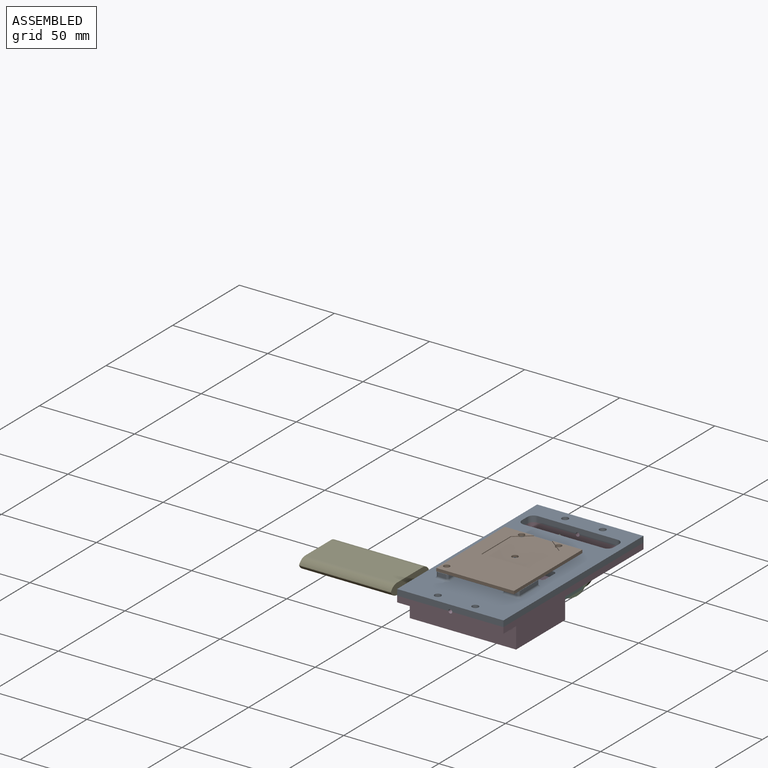
[diagram: assembled view]
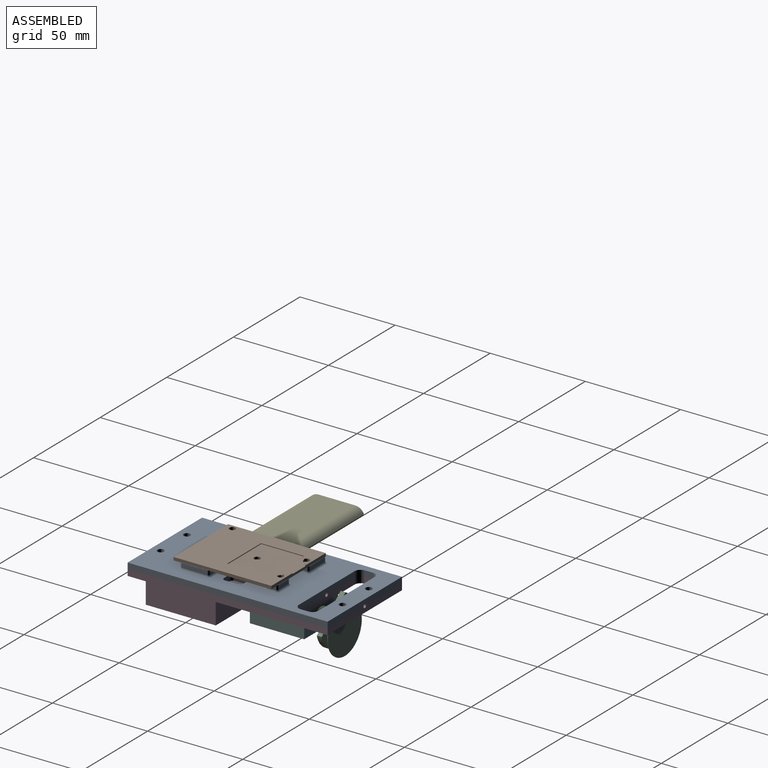
[diagram: assembled view, second angle]
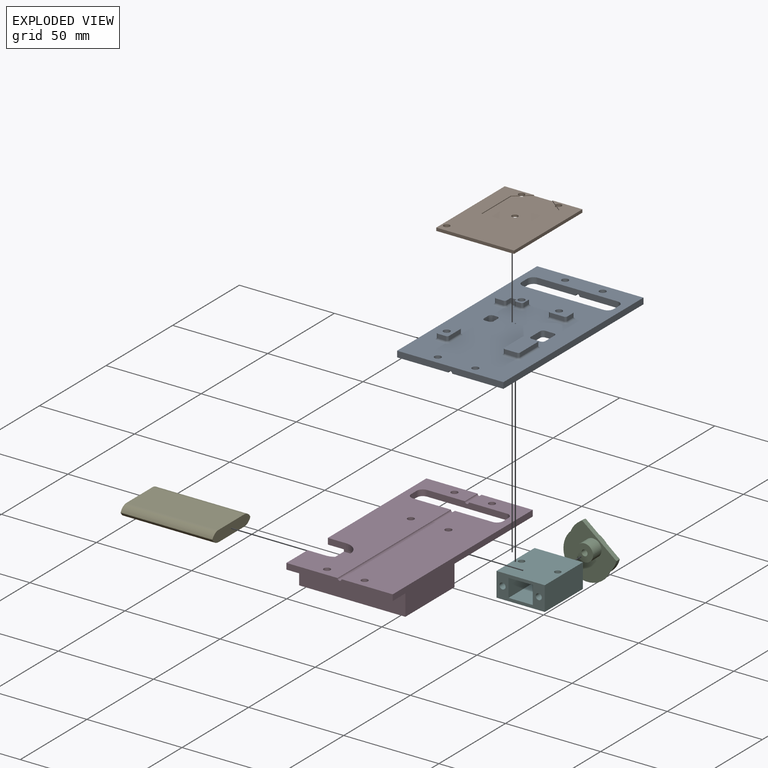
[diagram: exploded view]
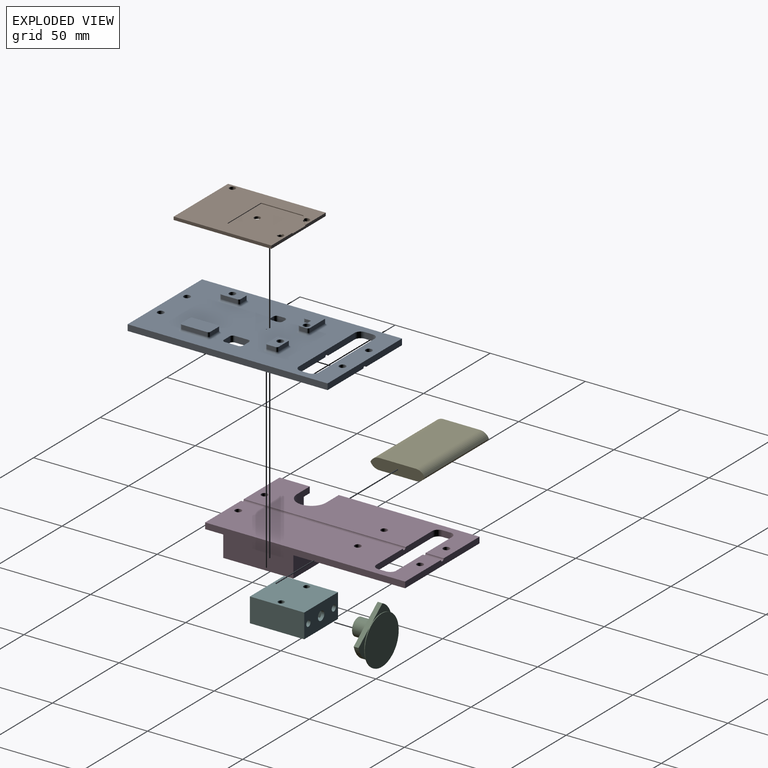
[diagram: exploded view, second angle]
ASSEMBLY  parts=6 mates=6
PART A: 119 faces, bbox 55.9x105.1x6.4 mm
  f0: plane 105.11x55.88mm, normal (0,0,1), area 4739.6mm2, adj f3,f4,f5,f6,f7,f8,f9,f12
  f1: plane 105.11x26.92mm, normal (0,0,-1), area 2524.7mm2, adj f4,f5,f6,f8,f9,f10,f12,f14
  f2: plane 105.11x26.92mm, normal (0,0,-1), area 2488.8mm2, adj f3,f4,f6,f7,f8,f11,f13,f16
  f3: plane 4.14x3.18mm, normal (-1,0,0), area 13.1mm2, adj f0,f2,f60,f63
  f4: plane 41.91x3.18mm, normal (0,1,0), area 131.4mm2, adj f0,f1,f2,f19,f60,f61
  f5: plane 4.14x3.18mm, normal (1,0,0), area 13.1mm2, adj f0,f1,f61,f62
  f6: plane 55.88x3.18mm, normal (0,-1,0), area 175.8mm2, adj f0,f1,f2,f7,f9,f19
  f7: plane 105.11x3.18mm, normal (1,0,0), area 333.7mm2, adj f0,f2,f6,f8
  f8: plane 55.88x3.18mm, normal (0,1,0), area 175.8mm2, adj f0,f1,f2,f7,f9,f18
  f9: plane 105.11x3.18mm, normal (-1,0,0), area 333.7mm2, adj f0,f1,f6,f8
  f10: cylinder r=1.71mm len=6.35mm, axis (0,0,-1), area 68.4mm2, adj f1,f33
  f11: cylinder r=1.71mm len=6.35mm, axis (0,0,-1), area 68.4mm2, adj f2,f38
  f12: cylinder r=1.71mm len=3.43mm, axis (0,0,-1), area 34.2mm2, adj f0,f1
  f13: cylinder r=1.71mm len=3.43mm, axis (0,0,-1), area 34.2mm2, adj f0,f2
  f14: cylinder r=1.71mm len=6.35mm, axis (0,0,-1), area 68.4mm2, adj f1,f24
  f15: cylinder r=1.71mm len=3.43mm, axis (0,0,-1), area 34.2mm2, adj f0,f1
  f16: cylinder r=1.71mm len=3.43mm, axis (0,0,-1), area 34.2mm2, adj f0,f2
  f17: plane 41.91x3.18mm, normal (0,-1,0), area 131.4mm2, adj f0,f1,f2,f18,f62,f63
  f18: cylinder r=1.02mm len=9.53mm, axis (0,-1,0), area 30.4mm2, adj f1,f2,f8,f17
  f19: cylinder r=1.02mm len=85.09mm, axis (0,-1,0), area 271.6mm2, adj f1,f2,f4,f6
  f20: plane 4.19x2.16mm, normal (0,1,0), area 9mm2, adj f24,f97,f102,f103
  f21: plane 8.38x2.16mm, normal (-1,0,0), area 18.1mm2, adj f24,f100,f103,f106
  f22: plane 4.19x2.16mm, normal (0,-1,0), area 9mm2, adj f24,f95,f100,f101
  f23: plane 8.38x2.16mm, normal (1,0,0), area 18.1mm2, adj f24,f95,f96,f97
  f24: plane 10.41x6.22mm, normal (0,0,1), area 54.7mm2, adj f14,f20,f21,f22,f23,f95,f97,f100
  f25: plane 3.81x2.16mm, normal (0,-1,0), area 8.2mm2, adj f33,f77,f79,f80
  f26: plane 3.1x2.16mm, normal (1,0,0), area 6.7mm2, adj f27,f33,f80,f82
  f27: plane 3.18x2.92mm, normal (0,-1,0), area 8.8mm2, adj f0,f26,f28,f33,f64,f82
  f28: plane 2.16x0.76mm, normal (-1,0,0), area 1.6mm2, adj f27,f33,f64,f65
  f29: plane 2.41x2.16mm, normal (0,-1,0), area 5.2mm2, adj f33,f65,f67,f68
  f30: plane 3.56x2.16mm, normal (1,0,0), area 7.7mm2, adj f33,f68,f70,f71
  f31: plane 11.18x2.16mm, normal (0,1,0), area 24.1mm2, adj f33,f71,f73,f74
  f32: plane 5.89x2.16mm, normal (-1,0,0), area 12.7mm2, adj f33,f74,f76,f77
  f33: plane 13.21x7.92mm, normal (0,0,1), area 71.7mm2, adj f10,f25,f26,f27,f28,f29,f30,f31
  f34: plane 7.34x2.16mm, normal (0,-1,0), area 15.8mm2, adj f38,f84,f90,f91
  f35: plane 4.32x2.16mm, normal (1,0,0), area 9.3mm2, adj f38,f83,f84,f85
  f36: plane 7.34x2.16mm, normal (0,1,0), area 15.8mm2, adj f38,f83,f88,f89
  f37: plane 4.32x2.16mm, normal (-1,0,0), area 9.3mm2, adj f38,f89,f90,f94
  f38: plane 9.37x6.35mm, normal (0,0,1), area 49.4mm2, adj f11,f34,f35,f36,f37,f83,f84,f89
  f39: plane 6.32x2.16mm, normal (0,-1,0), area 13.7mm2, adj f43,f108,f114,f115
  f40: plane 13.21x2.16mm, normal (1,0,0), area 28.5mm2, adj f43,f107,f108,f109
  f41: plane 6.32x2.16mm, normal (0,1,0), area 13.7mm2, adj f43,f107,f112,f113
  f42: plane 13.21x2.16mm, normal (-1,0,0), area 28.5mm2, adj f43,f113,f114,f118
  f43: plane 15.24x8.36mm, normal (0,0,1), area 126.5mm2, adj f39,f40,f41,f42,f107,f108,f113,f114
  f44: plane 4.42x3.18mm, normal (0,-1,0), area 14mm2, adj f0,f2,f52,f55
  f45: plane 6.96x3.18mm, normal (-1,0,0), area 22.1mm2, adj f0,f2,f52,f53
  f46: plane 4.42x3.18mm, normal (0,1,0), area 14mm2, adj f0,f2,f53,f54
  f47: plane 6.96x3.18mm, normal (1,0,0), area 22.1mm2, adj f0,f2,f54,f55
  f48: plane 3.18x1.88mm, normal (0,-1,0), area 6mm2, adj f0,f1,f56,f59
  f49: plane 3.18x3.15mm, normal (-1,0,0), area 10mm2, adj f0,f1,f56,f57
  f50: plane 3.18x1.88mm, normal (0,1,0), area 6mm2, adj f0,f1,f57,f58
  f51: plane 3.18x3.15mm, normal (1,0,0), area 10mm2, adj f0,f1,f58,f59
  f52: cylinder r=1.6mm len=3.18mm, axis (0,0,1), area 8mm2, adj f0,f2,f44,f45
  f53: cylinder r=1.6mm len=3.18mm, axis (0,0,-1), area 8mm2, adj f0,f2,f45,f46
  f54: cylinder r=1.6mm len=3.18mm, axis (0,0,1), area 8mm2, adj f0,f2,f46,f47
  f55: cylinder r=1.6mm len=3.18mm, axis (0,0,-1), area 8mm2, adj f0,f2,f44,f47
  f56: cylinder r=1.6mm len=3.18mm, axis (0,0,1), area 8mm2, adj f0,f1,f48,f49
  f57: cylinder r=1.6mm len=3.18mm, axis (0,0,-1), area 8mm2, adj f0,f1,f49,f50
  f58: cylinder r=1.6mm len=3.18mm, axis (0,0,1), area 8mm2, adj f0,f1,f50,f51
  f59: cylinder r=1.6mm len=3.18mm, axis (0,0,-1), area 8mm2, adj f0,f1,f48,f51
  f60: cylinder r=3.17mm len=3.18mm, axis (0,0,1), area 15.8mm2, adj f0,f2,f3,f4
  f61: cylinder r=3.17mm len=3.18mm, axis (0,0,-1), area 15.8mm2, adj f0,f1,f4,f5
  f62: cylinder r=3.17mm len=3.18mm, axis (0,0,1), area 15.8mm2, adj f0,f1,f5,f17
  f63: cylinder r=3.17mm len=3.18mm, axis (0,0,-1), area 15.8mm2, adj f0,f2,f3,f17
  f64: cylinder r=1.02mm len=1.02mm, axis (0,-1,0), area 1.2mm2, adj f0,f27,f28,f66
  f65: cylinder r=1.02mm len=2.16mm, axis (0,0,-1), area 3.4mm2, adj f28,f29,f33,f66
  f66: torus R=2.03mm, axis (0,0,1), area 3.5mm2, adj f0,f64,f65,f67
  f67: cylinder r=1.02mm len=2.41mm, axis (1,0,0), area 3.9mm2, adj f0,f29,f66,f69
  f68: cylinder r=1.02mm len=2.16mm, axis (0,0,-1), area 3.4mm2, adj f29,f30,f33,f69
  f69: torus R=2.03mm, axis (0,0,1), area 3.5mm2, adj f0,f67,f68,f70
  f70: cylinder r=1.02mm len=3.56mm, axis (0,1,0), area 5.7mm2, adj f0,f30,f69,f72
  f71: cylinder r=1.02mm len=2.16mm, axis (0,0,-1), area 3.4mm2, adj f30,f31,f33,f72
  f72: torus R=2.03mm, axis (0,0,1), area 3.5mm2, adj f0,f70,f71,f73
  f73: cylinder r=1.02mm len=11.18mm, axis (-1,0,0), area 17.8mm2, adj f0,f31,f72,f75
  f74: cylinder r=1.02mm len=2.16mm, axis (0,0,1), area 3.4mm2, adj f31,f32,f33,f75
  f75: torus R=2.03mm, axis (0,0,1), area 3.5mm2, adj f0,f73,f74,f76
  f76: cylinder r=1.02mm len=5.89mm, axis (0,-1,0), area 9.4mm2, adj f0,f32,f75,f78
  f77: cylinder r=1.02mm len=2.16mm, axis (0,0,1), area 3.4mm2, adj f25,f32,f33,f78
  f78: torus R=2.03mm, axis (0,0,1), area 3.5mm2, adj f0,f76,f77,f79
  f79: cylinder r=1.02mm len=3.81mm, axis (1,0,0), area 6.1mm2, adj f0,f25,f78,f81
  f80: cylinder r=1.02mm len=2.16mm, axis (0,0,-1), area 3.4mm2, adj f25,f26,f33,f81
  f81: torus R=2.03mm, axis (0,0,1), area 3.5mm2, adj f0,f79,f80,f82
  f82: cylinder r=1.02mm len=3.1mm, axis (0,1,0), area 4.9mm2, adj f0,f26,f27,f81
  f83: cylinder r=1.02mm len=2.16mm, axis (0,0,1), area 3.4mm2, adj f35,f36,f38,f86
  f84: cylinder r=1.02mm len=2.16mm, axis (0,0,-1), area 3.4mm2, adj f34,f35,f38,f87
  f85: cylinder r=1.02mm len=4.32mm, axis (0,1,0), area 6.9mm2, adj f0,f35,f86,f87
  f86: torus R=2.03mm, axis (0,0,1), area 3.5mm2, adj f0,f83,f85,f88
  f87: torus R=2.03mm, axis (0,0,1), area 3.5mm2, adj f0,f84,f85,f91
  f88: cylinder r=1.02mm len=7.34mm, axis (-1,0,0), area 11.7mm2, adj f0,f36,f86,f92
  f89: cylinder r=1.02mm len=2.16mm, axis (0,0,-1), area 3.4mm2, adj f36,f37,f38,f92
  f90: cylinder r=1.02mm len=2.16mm, axis (0,0,1), area 3.4mm2, adj f34,f37,f38,f93
  f91: cylinder r=1.02mm len=7.34mm, axis (1,0,0), area 11.7mm2, adj f0,f34,f87,f93
  f92: torus R=2.03mm, axis (0,0,1), area 3.5mm2, adj f0,f88,f89,f94
  f93: torus R=2.03mm, axis (0,0,1), area 3.5mm2, adj f0,f90,f91,f94
  f94: cylinder r=1.02mm len=4.32mm, axis (0,-1,0), area 6.9mm2, adj f0,f37,f92,f93
  f95: cylinder r=1.02mm len=2.16mm, axis (0,0,-1), area 3.4mm2, adj f22,f23,f24,f98
  f96: cylinder r=1.02mm len=8.38mm, axis (0,1,0), area 13.4mm2, adj f0,f23,f98,f99
  f97: cylinder r=1.02mm len=2.16mm, axis (0,0,1), area 3.4mm2, adj f20,f23,f24,f99
  f98: torus R=2.03mm, axis (0,0,1), area 3.5mm2, adj f0,f95,f96,f101
  f99: torus R=2.03mm, axis (0,0,1), area 3.5mm2, adj f0,f96,f97,f102
  f100: cylinder r=1.02mm len=2.16mm, axis (0,0,1), area 3.4mm2, adj f21,f22,f24,f104
  f101: cylinder r=1.02mm len=4.19mm, axis (1,0,0), area 6.7mm2, adj f0,f22,f98,f104
  f102: cylinder r=1.02mm len=4.19mm, axis (-1,0,0), area 6.7mm2, adj f0,f20,f99,f105
  f103: cylinder r=1.02mm len=2.16mm, axis (0,0,-1), area 3.4mm2, adj f20,f21,f24,f105
  f104: torus R=2.03mm, axis (0,0,1), area 3.5mm2, adj f0,f100,f101,f106
  f105: torus R=2.03mm, axis (0,0,1), area 3.5mm2, adj f0,f102,f103,f106
  f106: cylinder r=1.02mm len=8.38mm, axis (0,-1,0), area 13.4mm2, adj f0,f21,f104,f105
  f107: cylinder r=1.02mm len=2.16mm, axis (0,0,1), area 3.4mm2, adj f40,f41,f43,f110
  f108: cylinder r=1.02mm len=2.16mm, axis (0,0,-1), area 3.4mm2, adj f39,f40,f43,f111
  f109: cylinder r=1.02mm len=13.21mm, axis (0,1,0), area 21.1mm2, adj f0,f40,f110,f111
  f110: torus R=2.03mm, axis (0,0,1), area 3.5mm2, adj f0,f107,f109,f112
  f111: torus R=2.03mm, axis (0,0,1), area 3.5mm2, adj f0,f108,f109,f115
  f112: cylinder r=1.02mm len=6.32mm, axis (-1,0,0), area 10.1mm2, adj f0,f41,f110,f116
  f113: cylinder r=1.02mm len=2.16mm, axis (0,0,-1), area 3.4mm2, adj f41,f42,f43,f116
  f114: cylinder r=1.02mm len=2.16mm, axis (0,0,1), area 3.4mm2, adj f39,f42,f43,f117
  f115: cylinder r=1.02mm len=6.32mm, axis (1,0,0), area 10.1mm2, adj f0,f39,f111,f117
  f116: torus R=2.03mm, axis (0,0,1), area 3.5mm2, adj f0,f112,f113,f118
  f117: torus R=2.03mm, axis (0,0,1), area 3.5mm2, adj f0,f114,f115,f118
  f118: cylinder r=1.02mm len=13.21mm, axis (0,-1,0), area 21.1mm2, adj f0,f42,f116,f117
PART B: 18 faces, bbox 40.8x51.4x1.6 mm
  f0: cylinder r=1.59mm len=3.18mm, axis (0,0,-1), area 14.7mm2, adj f3,f9,f10,f12,f17
  f1: cylinder r=1.59mm len=3.18mm, axis (0,0,-1), area 14.9mm2, adj f3,f9,f11,f16,f17
  f2: cylinder r=1.59mm len=3.18mm, axis (0,0,-1), area 11.9mm2, adj f9,f17
  f3: plane 51.36x40.84mm, normal (0,0,1), area 1400.2mm2, adj f0,f1,f4,f5,f6,f7,f8,f10
  f4: plane 40.84x1.59mm, normal (0,-1,0), area 64.8mm2, adj f3,f5,f8,f9
  f5: plane 51.36x1.59mm, normal (1,0,0), area 81.5mm2, adj f3,f4,f6,f9
  f6: plane 40.84x1.59mm, normal (0,1,0), area 61.1mm2, adj f3,f5,f8,f9,f11,f12,f17
  f7: cylinder r=1.59mm len=3.18mm, axis (0,0,-1), area 15.8mm2, adj f3,f9
  f8: plane 51.36x1.59mm, normal (-1,0,0), area 81.5mm2, adj f3,f4,f6,f9
  f9: plane 51.36x40.84mm, normal (0,0,-1), area 2066mm2, adj f0,f1,f2,f4,f5,f6,f7,f8
  f10: plane 2.66x2.19mm, normal (0.64,-0.77,0), area 1.4mm2, adj f0,f3,f13,f17
  f11: plane 3.62x2.82mm, normal (-0.61,-0.79,0), area 1.8mm2, adj f1,f3,f6,f17
  f12: plane 3.18x2.61mm, normal (0.64,-0.77,0), area 1.6mm2, adj f0,f3,f6,f17
  f13: plane 22.23x0.4mm, normal (1,0,0), area 8.8mm2, adj f3,f10,f14,f17
  f14: plane 25.4x0.4mm, normal (0,1,0), area 10.1mm2, adj f3,f13,f15,f17
  f15: plane 22.23x0.4mm, normal (-1,0,0), area 8.8mm2, adj f3,f14,f16,f17
  f16: plane 2.78x2.17mm, normal (-0.61,-0.79,0), area 1.4mm2, adj f1,f3,f15,f17
  f17: plane 28.58x25.4mm, normal (0,0,1), area 665.8mm2, adj f0,f1,f2,f6,f10,f11,f12,f13
PART C: 12 faces, bbox 29.8x29.6x9.2 mm
  f0: plane 14.65x8.97mm, normal (0,0,1), area 31.2mm2, adj f6,f8,f10
  f1: plane 25.02x24.09mm, normal (0,0,-1), area 321.3mm2, adj f3,f6,f8
  f2: cylinder r=1.59mm len=6.35mm, axis (0,0,-1), area 63.3mm2, adj f4,f7
  f3: cylinder r=4.5mm len=8.99mm, axis (0,0,-1), area 179.4mm2, adj f1,f4
  f4: plane 8.99x8.99mm, normal (0,0,-1), area 55.6mm2, adj f2,f3
  f5: plane 15.12x7.24mm, normal (0,0,1), area 31.2mm2, adj f6,f8,f10
  f6: cylinder r=12.7mm len=25.02mm, axis (0,0,-1), area 129.3mm2, adj f0,f1,f5,f8,f9
  f7: plane 3.18x3.18mm, normal (0,0,-1), area 7.9mm2, adj f2
  f8: plane 17.94x14.48mm, normal (0.78,0.63,0), area 58.5mm2, adj f0,f1,f5,f6
  f9: plane 24.47x23.2mm, normal (0,0,-1), area 184.4mm2, adj f6,f10
  f10: cylinder r=12.7mm len=25.4mm, axis (0,0,-1), area 28.4mm2, adj f0,f5,f9,f11
  f11: plane 25.4x25.4mm, normal (0,0,1), area 506.7mm2, adj f10
PART D: 41 faces, bbox 55.9x105.1x14.3 mm
  f0: plane 15.88x14.3mm, normal (-1,0,0), area 95.8mm2, adj f4,f12,f18,f20,f23,f24,f25,f28
  f1: plane 73.99x14.3mm, normal (-1,0,0), area 308.5mm2, adj f2,f6,f11,f18,f19,f20,f21,f28
  f2: plane 9.53x3.18mm, normal (0,-1,0), area 30.2mm2, adj f1,f3,f18,f28
  f3: cylinder r=7.62mm len=15.24mm, axis (0,0,-1), area 76mm2, adj f2,f4,f18,f28
  f4: plane 9.53x3.18mm, normal (0,1,0), area 30.2mm2, adj f0,f3,f18,f28
  f5: plane 105.11x26.92mm, normal (0,0,1), area 2564mm2, adj f7,f8,f10,f11,f14,f16,f17,f25
  f6: plane 58.75x55.88mm, normal (0,0,-1), area 2748.4mm2, adj f1,f7,f8,f9,f10,f11,f13,f14
  f7: plane 4.14x3.18mm, normal (-1,0,0), area 13.1mm2, adj f5,f6,f33,f36
  f8: plane 41.91x3.18mm, normal (0,1,0), area 131.4mm2, adj f5,f6,f18,f26,f33,f34
  f9: plane 4.14x3.18mm, normal (1,0,0), area 13.1mm2, adj f6,f18,f34,f35
  f10: plane 105.11x14.3mm, normal (1,0,0), area 743.5mm2, adj f5,f6,f11,f12,f19,f20,f24,f25
  f11: plane 55.88x3.18mm, normal (0,1,0), area 175.8mm2, adj f1,f5,f6,f10,f18,f27
  f12: plane 55.88x11.13mm, normal (0,-1,0), area 621.7mm2, adj f0,f10,f20,f24
  f13: cylinder r=1.71mm len=3.43mm, axis (0,0,-1), area 34.2mm2, adj f6,f18
  f14: cylinder r=1.71mm len=3.43mm, axis (0,0,-1), area 34.2mm2, adj f5,f6
  f15: cylinder r=1.71mm len=3.43mm, axis (0,0,-1), area 34.2mm2, adj f6,f18
  f16: cylinder r=1.71mm len=3.43mm, axis (0,0,-1), area 34.2mm2, adj f5,f6
  f17: plane 41.91x3.18mm, normal (0,-1,0), area 131.4mm2, adj f5,f6,f18,f27,f35,f36
  f18: plane 105.11x26.92mm, normal (0,0,1), area 2327.6mm2, adj f0,f1,f2,f3,f4,f8,f9,f11
  f19: plane 55.88x11.13mm, normal (0,1,0), area 492.6mm2, adj f1,f6,f10,f20,f39,f40
  f20: plane 55.88x36.83mm, normal (0,0,-1), area 1758.4mm2, adj f0,f1,f10,f12,f19,f21,f22,f23
  f21: plane 9.53x3.18mm, normal (0,-1,0), area 30.2mm2, adj f1,f20,f22,f29
  f22: cylinder r=7.62mm len=15.24mm, axis (0,0,-1), area 76mm2, adj f20,f21,f23,f29
  f23: plane 9.53x3.18mm, normal (0,1,0), area 30.2mm2, adj f0,f20,f22,f29
  f24: plane 55.88x9.53mm, normal (0,0,-1), area 513.8mm2, adj f0,f10,f12,f25,f37,f38
  f25: plane 55.88x3.18mm, normal (0,-1,0), area 175.8mm2, adj f0,f5,f10,f18,f24,f26
  f26: cylinder r=1.02mm len=85.09mm, axis (0,1,0), area 271.6mm2, adj f5,f8,f18,f25
  f27: cylinder r=1.02mm len=9.53mm, axis (0,1,0), area 30.4mm2, adj f5,f11,f17,f18
  f28: plane 52.07x30.48mm, normal (0,0,-1), area 1350.7mm2, adj f0,f1,f2,f3,f4,f30,f31,f32
  f29: plane 52.07x30.48mm, normal (0,0,1), area 1326mm2, adj f0,f1,f21,f22,f23,f30,f31,f32
  f30: plane 52.07x7.95mm, normal (0,-1,0), area 337.1mm2, adj f1,f28,f29,f32,f39,f40
  f31: plane 52.07x7.95mm, normal (0,1,0), area 414mm2, adj f0,f28,f29,f32
  f32: plane 30.48x7.95mm, normal (-1,0,0), area 242.3mm2, adj f28,f29,f30,f31
  f33: cylinder r=3.17mm len=3.18mm, axis (0,0,1), area 15.8mm2, adj f5,f6,f7,f8
  f34: cylinder r=3.17mm len=3.18mm, axis (0,0,-1), area 15.8mm2, adj f6,f8,f9,f18
  f35: cylinder r=3.17mm len=3.18mm, axis (0,0,1), area 15.8mm2, adj f6,f9,f17,f18
  f36: cylinder r=3.17mm len=3.18mm, axis (0,0,-1), area 15.8mm2, adj f5,f6,f7,f17
  f37: cylinder r=1.71mm len=3.43mm, axis (0,0,-1), area 34.2mm2, adj f18,f24
  f38: cylinder r=1.71mm len=3.43mm, axis (0,0,-1), area 34.2mm2, adj f5,f24
  f39: cylinder r=6.35mm len=12.7mm, axis (0,0,-1), area 109.8mm2, adj f19,f20,f29,f30,f40
  f40: plane 12.7x3.18mm, normal (0,0,-1), area 38.6mm2, adj f19,f30,f39
PART E: 8 faces, bbox 28.5x48.3x5.8 mm
  f0: plane 28.5x5.84mm, normal (0,-1,0), area 151.3mm2, adj f2,f3,f4,f5,f6,f7
  f1: plane 28.5x5.84mm, normal (0,1,0), area 151.3mm2, adj f2,f3,f4,f5,f6,f7
  f2: plane 48.26x19.3mm, normal (0,0,1), area 931.6mm2, adj f0,f1,f4,f6
  f3: plane 48.26x19.3mm, normal (0,0,-1), area 931.6mm2, adj f0,f1,f5,f7
  f4: cylinder r=5.08mm len=48.26mm, axis (0,-1,0), area 277.5mm2, adj f0,f1,f2,f5
  f5: cylinder r=5.08mm len=48.26mm, axis (0,1,0), area 277.5mm2, adj f0,f1,f3,f4
  f6: cylinder r=5.08mm len=48.26mm, axis (0,1,0), area 277.5mm2, adj f0,f1,f2,f7
  f7: cylinder r=5.08mm len=48.26mm, axis (0,-1,0), area 277.5mm2, adj f0,f1,f3,f6
PART F: 22 faces, bbox 25.4x28.6x12.7 mm
  f0: plane 25.4x12.7mm, normal (0,1,0), area 186.1mm2, adj f2,f5,f6,f7,f8,f9,f10,f11
  f1: plane 25.4x12.7mm, normal (0,-1,0), area 288.9mm2, adj f2,f5,f6,f7,f13,f14,f16
  f2: plane 28.58x12.7mm, normal (1,0,0), area 362.9mm2, adj f0,f1,f6,f7
  f3: cylinder r=1.59mm len=12.7mm, axis (0,0,-1), area 126.7mm2, adj f6,f7
  f4: cylinder r=1.59mm len=12.7mm, axis (0,0,-1), area 126.7mm2, adj f6,f7
  f5: plane 28.58x12.7mm, normal (-1,0,0), area 362.9mm2, adj f0,f1,f6,f7
  f6: plane 28.58x25.4mm, normal (0,0,1), area 710mm2, adj f0,f1,f2,f3,f4,f5
  f7: plane 28.58x25.4mm, normal (0,0,-1), area 710mm2, adj f0,f1,f2,f3,f4,f5
  f8: plane 27x12.7mm, normal (0,0,1), area 342.9mm2, adj f0,f9,f11,f12
  f9: plane 27x9.5mm, normal (1,0,0), area 256.5mm2, adj f0,f8,f10,f12
  f10: plane 27x12.7mm, normal (0,0,-1), area 342.9mm2, adj f0,f9,f11,f12
  f11: plane 27x9.5mm, normal (-1,0,0), area 256.5mm2, adj f0,f8,f10,f12
  f12: plane 12.7x9.5mm, normal (0,1,0), area 102.8mm2, adj f8,f9,f10,f11,f13
  f13: cylinder r=2.38mm len=4.76mm, axis (0,1,0), area 23.6mm2, adj f1,f12
  f14: cylinder r=1.59mm len=11.43mm, axis (0,-1,0), area 114mm2, adj f1,f15
  f15: plane 3.18x3.18mm, normal (0,-1,0), area 7.9mm2, adj f14
  f16: cylinder r=1.59mm len=11.43mm, axis (0,-1,0), area 114mm2, adj f1,f17
  f17: plane 3.18x3.18mm, normal (0,-1,0), area 7.9mm2, adj f16
  f18: cylinder r=1.59mm len=11.43mm, axis (0,1,0), area 114mm2, adj f0,f19
  f19: plane 3.18x3.18mm, normal (0,1,0), area 7.9mm2, adj f18
  f20: cylinder r=1.59mm len=11.43mm, axis (0,1,0), area 114mm2, adj f0,f21
  f21: plane 3.18x3.18mm, normal (0,1,0), area 7.9mm2, adj f20
PLACE A t=(-30.78,-44.93,27.18)mm
PLACE B t=(-30.91,-52.94,33.53)mm
PLACE C rot(axis=(-0.58,-0.58,-0.58),120deg) t=(-31.14,-15.58,16.19)mm
PLACE D t=(-30.78,-87.96,24.01)mm
PLACE E rot(axis=(0,0,1),90deg) t=(-95.78,-69.45,17.02)mm
PLACE F rot(axis=(0,0,1),180deg) t=(-31.14,-29.87,9.84)mm
MATE cylindrical D.f13 <-> F.f4  axis (0,0,-1) through (-40.65,-29.87,24.01)mm
MATE cylindrical A.f10 <-> B.f0  axis (0,0,-1) through (-40.65,-29.87,30.36)mm
MATE planar C.f2 <-> F.f13  axis (0,-1,0) through (-31.14,-15.58,16.19)mm
MATE planar A.f10 <-> D.f18  axis (0,0,-1) through (-40.65,-29.87,27.18)mm
MATE cylindrical F.f13 <-> C.f2  axis (0,-1,0) through (-31.14,-16.37,16.19)mm
MATE cylindrical D.f14 <-> A.f11  axis (0,0,-1) through (-20.91,-29.87,24.01)mm
